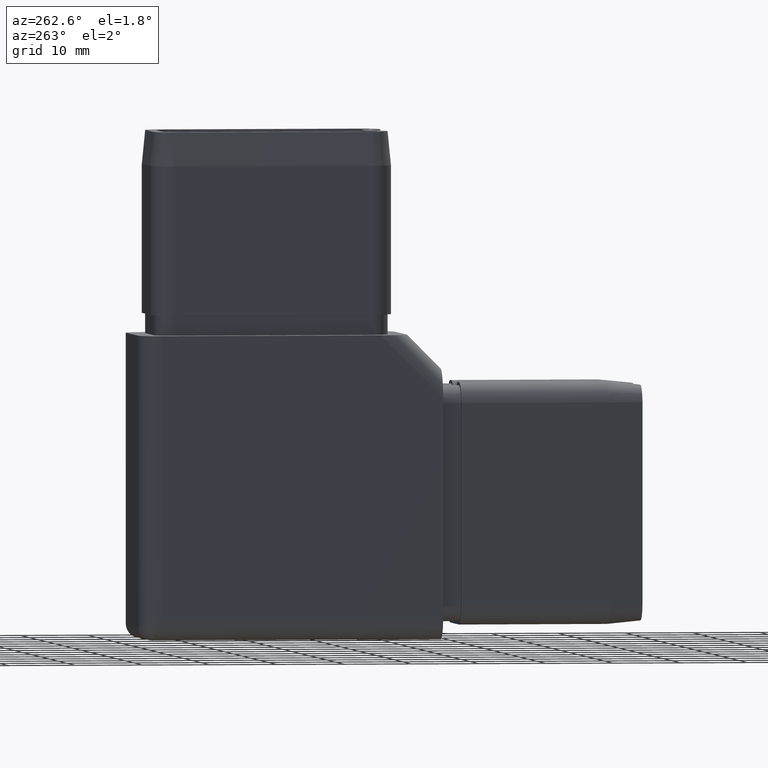
[diagram: clean part render]
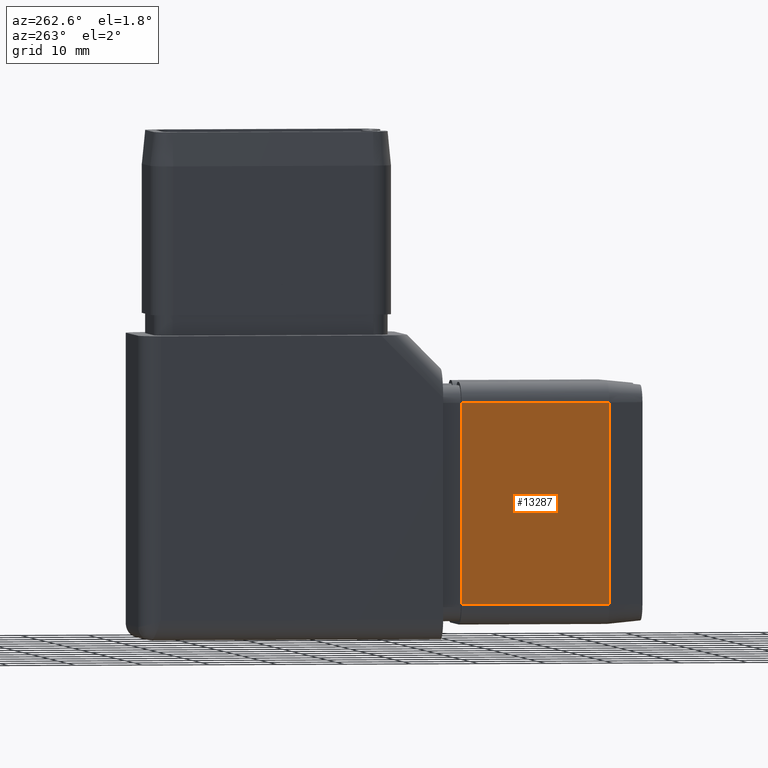
[diagram: same view with one face highlighted and labeled with its STEP entity id]
A machine part, auxiliary view. The second image highlights one B-rep face of the part: STEP entity #13287.
In plain terms, the highlighted planar face has unit normal (-1, 0, -0).
Its self-contained STEP definition (entity closure, byte-faithful):
#771 = ORIENTED_EDGE ( 'NONE', *, *, #22733, .F. ) ;
#1620 = VECTOR ( 'NONE', #3668, 1000.000000000000000 ) ;
#1874 = ORIENTED_EDGE ( 'NONE', *, *, #4580, .F. ) ;
#2460 = EDGE_CURVE ( 'NONE', #7827, #18131, #20806, .T. ) ;
#3668 = DIRECTION ( 'NONE',  ( -0.0000000000000000000, 1.000000000000000000, 2.220446049250313100E-016 ) ) ;
#4231 = CARTESIAN_POINT ( 'NONE',  ( -7.900000000000002100, -52.49999999999999300, -1.349684718946572400E-014 ) ) ;
#4427 = ORIENTED_EDGE ( 'NONE', *, *, #18883, .T. ) ;
#4580 = EDGE_CURVE ( 'NONE', #16383, #18131, #7288, .T. ) ;
#5631 = DIRECTION ( 'NONE',  ( 1.746365915412893200E-016, 2.328487887217190900E-016, -1.000000000000000000 ) ) ;
#5823 = VECTOR ( 'NONE', #5631, 1000.000000000000000 ) ;
#6043 = VECTOR ( 'NONE', #20754, 1000.000000000000000 ) ;
#7018 = CARTESIAN_POINT ( 'NONE',  ( -7.900000000000003900, -47.49999999999999300, 12.39999999999999100 ) ) ;
#7288 = LINE ( 'NONE', #11102, #6043 ) ;
#7529 = CARTESIAN_POINT ( 'NONE',  ( -7.899999999999999500, -47.49999999999998600, -17.40000000000000900 ) ) ;
#7827 = VERTEX_POINT ( 'NONE', #22020 ) ;
#9823 = EDGE_LOOP ( 'NONE', ( #771, #4427, #16078, #1874 ) ) ;
#10410 = VECTOR ( 'NONE', #18200, 1000.000000000000000 ) ;
#10678 = FACE_OUTER_BOUND ( 'NONE', #9823, .T. ) ;
#10781 = CARTESIAN_POINT ( 'NONE',  ( -7.900000000000003900, -47.49999999999999300, 12.39999999999999100 ) ) ;
#11102 = CARTESIAN_POINT ( 'NONE',  ( -7.899999999999999500, -52.49999999999999300, -17.40000000000000900 ) ) ;
#13287 = ADVANCED_FACE ( 'NONE', ( #10678 ), #15924, .T. ) ;
#13787 = AXIS2_PLACEMENT_3D ( 'NONE', #4231, #17714, #15760 ) ;
#14204 = CARTESIAN_POINT ( 'NONE',  ( -7.900000000000003900, -25.50000000000000000, 12.39999999999999100 ) ) ;
#15760 = DIRECTION ( 'NONE',  ( -2.328487887217191400E-016, 0.0000000000000000000, 1.000000000000000000 ) ) ;
#15924 = PLANE ( 'NONE',  #13787 ) ;
#16078 = ORIENTED_EDGE ( 'NONE', *, *, #2460, .T. ) ;
#16383 = VERTEX_POINT ( 'NONE', #7529 ) ;
#17200 = LINE ( 'NONE', #24842, #1620 ) ;
#17714 = DIRECTION ( 'NONE',  ( -1.000000000000000000, 5.170281729898621200E-032, -2.328487887217191400E-016 ) ) ;
#18131 = VERTEX_POINT ( 'NONE', #19184 ) ;
#18200 = DIRECTION ( 'NONE',  ( 1.746365915412893200E-016, 2.328487887217190900E-016, -1.000000000000000000 ) ) ;
#18883 = EDGE_CURVE ( 'NONE', #24492, #7827, #17200, .T. ) ;
#19184 = CARTESIAN_POINT ( 'NONE',  ( -7.899999999999999500, -25.49999999999999300, -17.40000000000000900 ) ) ;
#20754 = DIRECTION ( 'NONE',  ( -0.0000000000000000000, 1.000000000000000000, 2.220446049250313100E-016 ) ) ;
#20806 = LINE ( 'NONE', #14204, #10410 ) ;
#21414 = LINE ( 'NONE', #10781, #5823 ) ;
#22020 = CARTESIAN_POINT ( 'NONE',  ( -7.900000000000003900, -25.50000000000000000, 12.39999999999999100 ) ) ;
#22733 = EDGE_CURVE ( 'NONE', #24492, #16383, #21414, .T. ) ;
#24492 = VERTEX_POINT ( 'NONE', #7018 ) ;
#24842 = CARTESIAN_POINT ( 'NONE',  ( -7.900000000000005700, -52.50000000000000000, 12.39999999999999000 ) ) ;